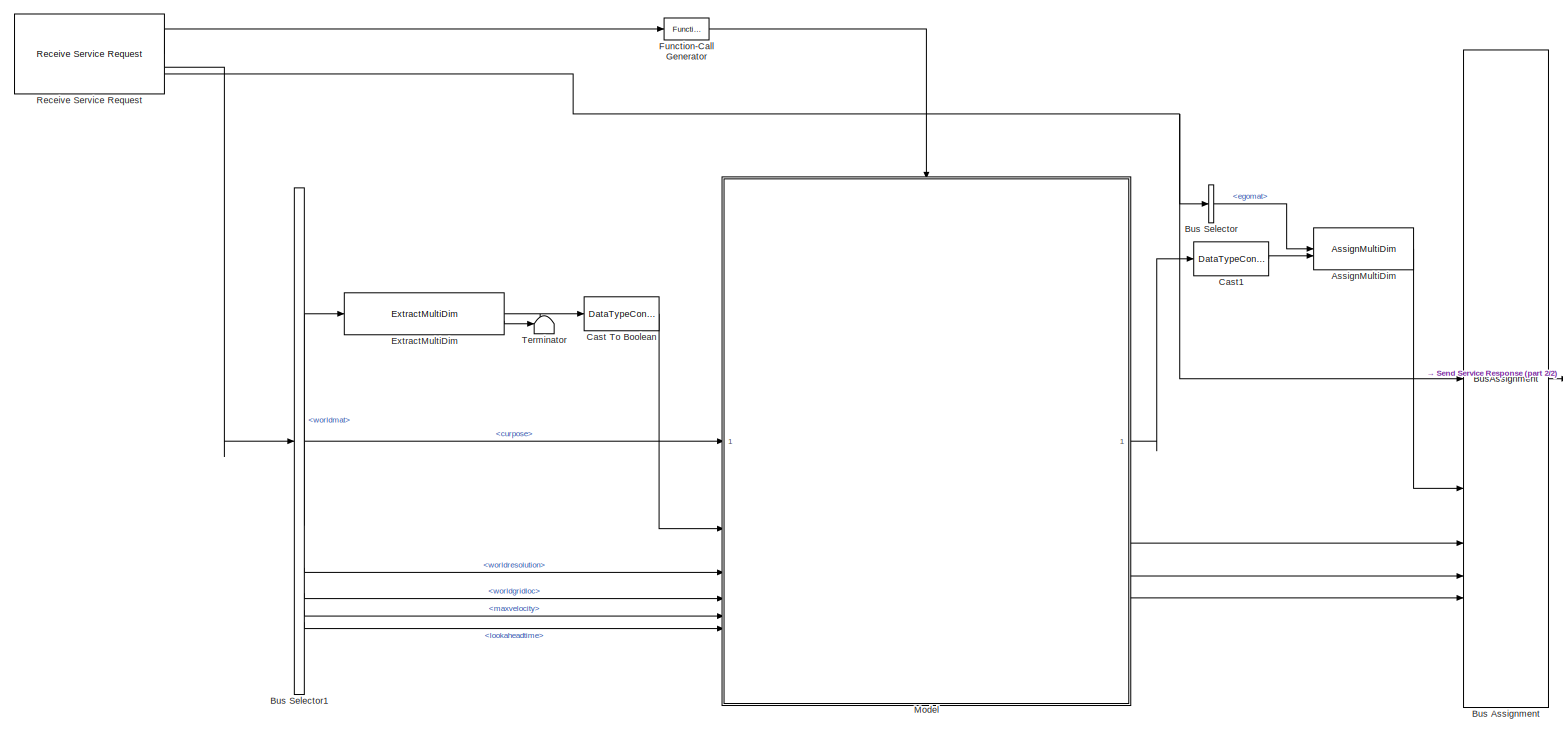
[diagram: root canvas - part 1/2, most of the canvas]
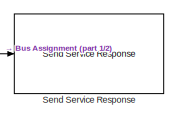
[diagram: root canvas - part 2/2, middle right region]
MODEL slx_bceafb7642c7
KIND model
CONFIG AbsTol = auto
CONFIG EnableMultiTasking = off
CONFIG FixedStep = auto
CONFIG MaxStep = auto
CONFIG MinStep = auto
CONFIG RelTol = 1e-3
CONFIG SampleTimeConstraint = Unconstrained
CONFIG SolverName = FixedStepAuto
CONFIG StartTime = 0.0
CONFIG StopTime = inf
WORKSPACE source: mxarray member
WORKSPACE SL_ROS_VariableLengthArrays_MaxSizes: object (value not decoded)
BLOCK [Reference] AssignMultiDim  REF=roshelperlib/AssignMultiDim  (lib defined in slx_3328ea0e13a5)
  SourceBlock = roshelperlib/AssignMultiDim
  SourceType = SubSystem
BLOCK [BusAssignment] Bus Assignment
  AssignedSignals = egomat,egogridsize,egores,gridloc
BLOCK [BusSelector] Bus Selector
  OutputSignals = egomat
BLOCK [BusSelector] Bus Selector1
  OutputSignals = curpose,worldmat,worldresolution,worldgridloc,maxvelocity,lookaheadtime
BLOCK [DataTypeConversion] Cast To Boolean
  OutDataTypeStr = boolean
  RndMeth = Floor
  SaturateOnIntegerOverflow = off
BLOCK [DataTypeConversion] Cast1
  OutDataTypeStr = int8
  RndMeth = Floor
  SaturateOnIntegerOverflow = off
BLOCK [Reference] ExtractMultiDim  REF=roshelperlib/ExtractMultiDim  (lib defined in slx_3328ea0e13a5)
  SourceBlock = roshelperlib/ExtractMultiDim
BLOCK [Reference] Function-Call Generator  REF=simulink/Ports &
Subsystems/Function-Call
Generator
  SourceBlock = simulink/Ports &\nSubsystems/Function-Call\nGenerator
  SourceType = Function-Call Generator
BLOCK [ModelReference] Model
  ModelNameDialog = extractLocalMap.slx
  ModelReferenceVersion = 1.6
  TriggerPortName = function
  TriggerPortStatesWhenEnabling = held
  TriggerPortTriggerType = function-call
BLOCK [Reference] Receive Service Request  REF=ros2lib/Receive Service Request  (lib defined in slx_3c1549211f48)
  LibrarySourceBlock = ros2lib/Receive Request
  SourceBlock = ros2lib/Receive Service Request
  SourceType = ROS2 Receive Service Request
BLOCK [Reference] Send Service Response  REF=ros2lib/Send Service Response  (lib defined in slx_3c1549211f48)
  LibrarySourceBlock = ros2lib/Send Response
  SourceBlock = ros2lib/Send Service Response
  SourceType = ROS2 Send Service Response
BLOCK [Terminator] Terminator
LINE AssignMultiDim:1 -> Bus Assignment:2
LINE Bus Assignment:1 -> Send Service Response:1
LINE Bus Selector1:1 -> Model:1
LINE Bus Selector1:2 -> ExtractMultiDim:1
LINE Bus Selector1:3 -> Model:3
LINE Bus Selector1:4 -> Model:4
LINE Bus Selector1:5 -> Model:5
LINE Bus Selector1:6 -> Model:6
LINE Bus Selector:1 -> AssignMultiDim:1
LINE Cast To Boolean:1 -> Model:2
LINE Cast1:1 -> AssignMultiDim:2
LINE ExtractMultiDim:1 -> Cast To Boolean:1
LINE ExtractMultiDim:2 -> Terminator:1
LINE Function-Call Generator:1 -> Model:trigger
LINE Model:1 -> Cast1:1
LINE Model:2 -> Bus Assignment:3
LINE Model:3 -> Bus Assignment:4
LINE Model:4 -> Bus Assignment:5
LINE Receive Service Request:1 -> Function-Call Generator:1
LINE Receive Service Request:2 -> Bus Selector1:1
NET Receive Service Request:3 -> Bus Assignment:1, Bus Selector:1
note: NET lines group one-source signal fan-out (src -> all destinations, sorted); 1:1 wires keep LINE
